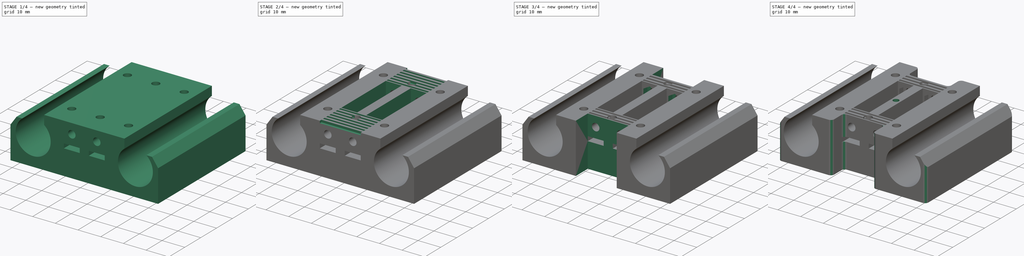
[diagram: build sequence overview — one tinted view per stage of 4, left to right]
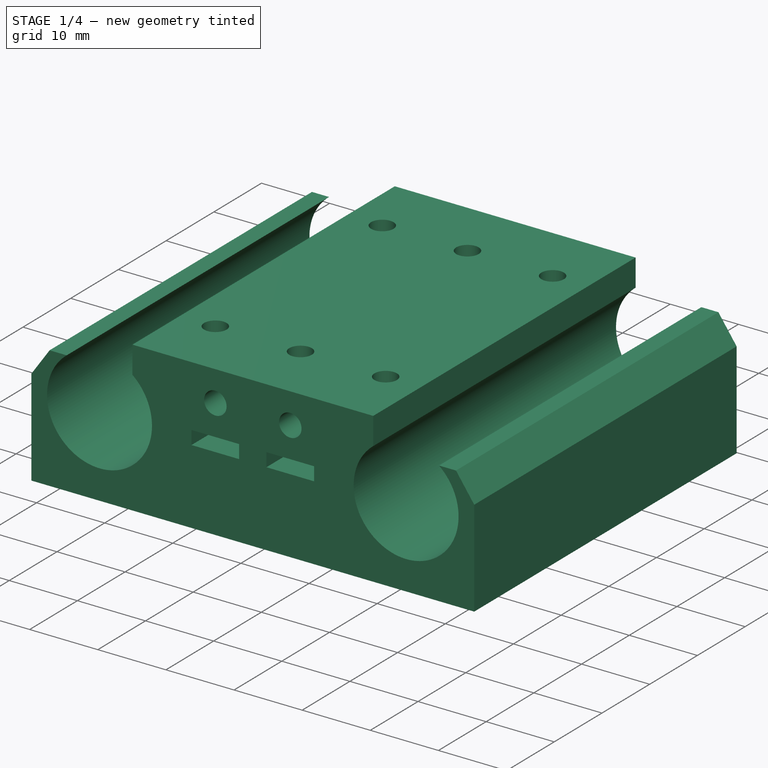
[diagram: stage 1 of 4 — iso view after this stage's code; geometry added in this stage tinted green]
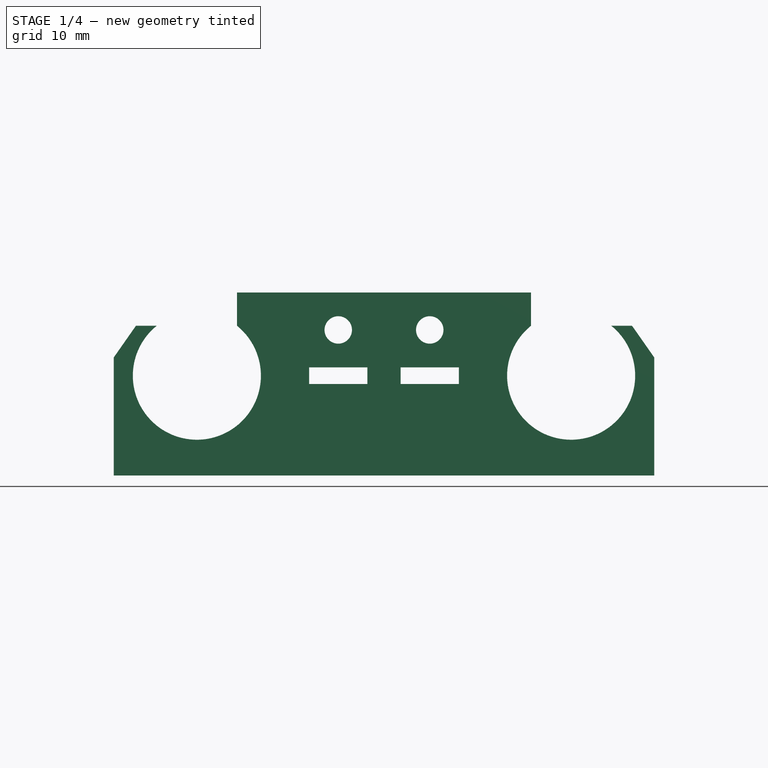
[diagram: stage 1 of 4 — front view after this stage's code; geometry added in this stage tinted green]
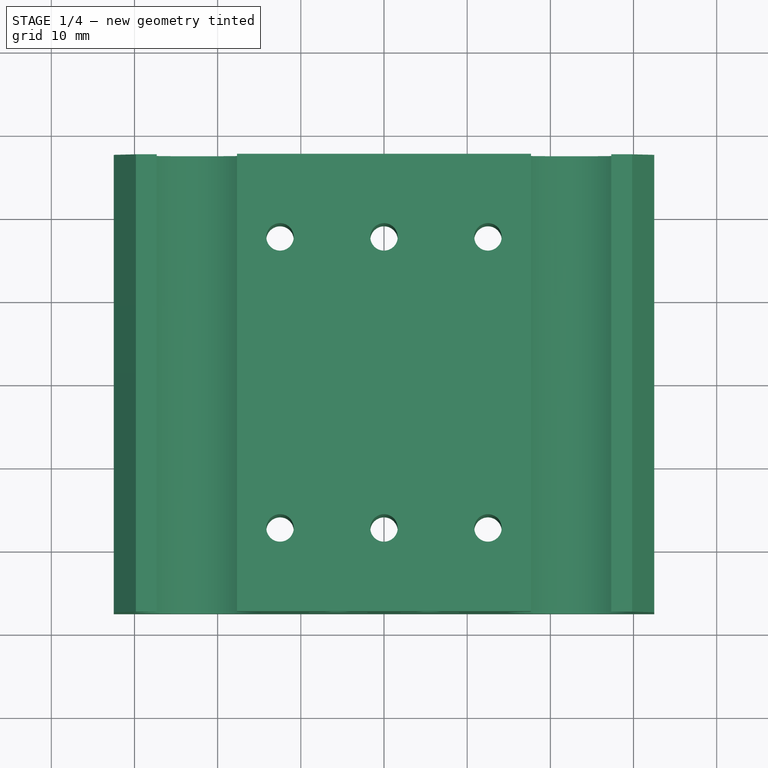
[diagram: stage 1 of 4 — top view after this stage's code; geometry added in this stage tinted green]
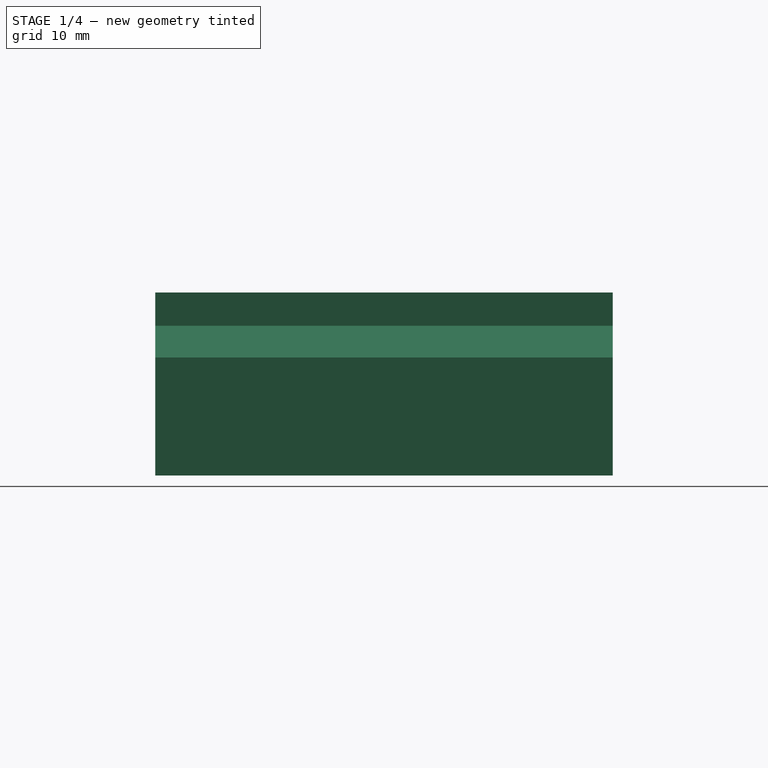
[diagram: stage 1 of 4 — right view after this stage's code; geometry added in this stage tinted green]
FCSTD DOCUMENT  (FreeCAD 0.19R20209 (Git))
Label: X-Axel-Bearing_1000
License: Creative Commons Attribution
LicenseURL: http://creativecommons.org/licenses/by/4.0/
objects: Sketcher::SketchObject×9, PartDesign::Pocket×8, PartDesign::Plane×4, PartDesign::Pad×1, PartDesign::Fillet×1, PartDesign::Body×1
note: 34 computed .brp shape members not serialized (recipe doc carries the construction recipe); baked Part::Feature solids carry a one-line shape summary decoded from their .brp

FEATURE [Sketcher::SketchObject] Sketch
  MapMode = 5
  Placement = pos=(0,0,0) rot=(1,0,0;1.5708rad)
  Support = -> [XZ_Plane]
  expr: Constraints[61] = 7 + 4
  sketch-geometry (22):
    g0: ArcOfCircle CenterX=-22.5 CenterY=0 CenterZ=0 NormalX=0 NormalY=0 NormalZ=1 AngleXU=0 Radius=7.7 StartAngle=2.24817 EndAngle=7.17661
    g1: ArcOfCircle CenterX=22.5 CenterY=0 CenterZ=0 NormalX=0 NormalY=0 NormalZ=1 AngleXU=0 Radius=7.7 StartAngle=2.24817 EndAngle=7.17661
    g2: LineSegment StartX=-27.326 StartY=6 StartZ=0 EndX=-29.826 EndY=6 EndZ=0
    g3: LineSegment StartX=-29.826 StartY=6 StartZ=0 EndX=-32.5 EndY=2.18109 EndZ=0
    g4: LineSegment StartX=-32.5 StartY=2.18109 StartZ=0 EndX=-32.5 EndY=-12 EndZ=0
    g5: LineSegment StartX=-32.5 StartY=-12 StartZ=0 EndX=32.5 EndY=-12 EndZ=0
    g6: LineSegment StartX=32.5 StartY=-12 StartZ=0 EndX=32.5 EndY=2.18109 EndZ=0
    g7: LineSegment StartX=32.5 StartY=2.18109 StartZ=0 EndX=29.826 EndY=6 EndZ=0
    g8: LineSegment StartX=29.826 StartY=6 StartZ=0 EndX=27.326 EndY=6 EndZ=0
    g9: LineSegment StartX=-9 StartY=1 StartZ=0 EndX=-2 EndY=1 EndZ=0
    g10: LineSegment StartX=-2 StartY=1 StartZ=0 EndX=-2 EndY=-1 EndZ=0
    g11: LineSegment StartX=-2 StartY=-1 StartZ=0 EndX=-9 EndY=-1 EndZ=0
    g12: LineSegment StartX=-9 StartY=-1 StartZ=0 EndX=-9 EndY=1 EndZ=0
    g13: LineSegment StartX=2 StartY=1 StartZ=0 EndX=9 EndY=1 EndZ=0
    g14: LineSegment StartX=9 StartY=1 StartZ=0 EndX=9 EndY=-1 EndZ=0
    g15: LineSegment StartX=9 StartY=-1 StartZ=0 EndX=2 EndY=-1 EndZ=0
    g16: LineSegment StartX=2 StartY=-1 StartZ=0 EndX=2 EndY=1 EndZ=0
    g17: LineSegment StartX=-17.674 StartY=6 StartZ=0 EndX=-17.674 EndY=10 EndZ=0
    g18: LineSegment StartX=-17.674 StartY=10 StartZ=0 EndX=17.674 EndY=10 EndZ=0
    g19: LineSegment StartX=17.674 StartY=10 StartZ=0 EndX=17.674 EndY=6 EndZ=0
    g20: Circle CenterX=-5.5 CenterY=5.5 CenterZ=0 NormalX=0 NormalY=0 NormalZ=1 AngleXU=0 Radius=1.65
    g21: Circle CenterX=5.5 CenterY=5.5 CenterZ=0 NormalX=0 NormalY=0 NormalZ=1 AngleXU=0 Radius=1.65
  constraints (64):
    c: Equal(g1,g0)
    c: Diameter(g0) = 15.4
    c: Horizontal(g0,g1)
    c: DistanceX(g0,g1) = 45
    c: Symmetric(g0,g1,g-1)
    c: Coincident(g2,g3)
    c: Coincident(g3,g4)
    c: Vertical(g4)
    c: Coincident(g4,g5)
    c: Coincident(g5,g6)
    c: Coincident(g6,g7)
    c: Coincident(g7,g8)
    c: Horizontal(g8)
    c: Vertical(g6)
    c: Horizontal(g2)
    c: Symmetric(g4,g5,g-2)
    c: DistanceX(g4,g5) = 65
    c: Angle(g4,g3) = 2.53073
    c: Angle(g7,g6) = 2.53073
    c: Horizontal(g8,g2)
    c: DistanceY(g5,g-1) = 12
    c: DistanceY(g4,g2) = 18
    c: Horizontal(g1,g8)
    c: Coincident(g0,g2)
    c: Coincident(g1,g8)
    c: Horizontal(g3,g6)
    c: DistanceX(g2,g0) = 2.5
    c: Coincident(g9,g10)
    c: Coincident(g10,g11)
    c: Coincident(g11,g12)
    c: Coincident(g12,g9)
    c: Horizontal(g9)
    c: Horizontal(g11)
    c: Vertical(g10)
    c: Vertical(g12)
    c: Coincident(g13,g14)
    c: Coincident(g14,g15)
    c: Coincident(g15,g16)
    c: Coincident(g16,g13)
    c: Horizontal(g13)
    c: Horizontal(g15)
    c: Vertical(g14)
    c: Vertical(g16)
    c: Equal(g13,g9)
    c: Equal(g12,g16)
    c: Symmetric(g9,g15,g-1)
    c: DistanceX(g10,g15) = 4
    c: DistanceX(g9,g9) = 7
    c: DistanceY(g12,g12) = 2
    c: Horizontal(g13,g9)
    c: Vertical(g17)
    c: Coincident(g17,g18)
    c: Horizontal(g18)
    c: Coincident(g18,g19)
    c: Vertical(g19)
    c: Coincident(g19,g1)
    c: Coincident(g17,g0)
    c: Horizontal(g0,g1)
    c: DistanceY(g5,g18) = 22
    c: Equal(g21,g20)
    c: Symmetric(g20,g21,g-2)
    c: DistanceX(g20,g21) = 11
    c: DistanceY(g-1,g21) = 5.5
    c: Diameter(g21) = 3.3
FEATURE [PartDesign::Pad] Pad
  Length = 55
  Length2 = 100
  Midplane = true
  Placement = pos=(0,0,0) rot=(1,0,0;1.5708rad)
  Profile = -> Sketch
  Refine = true
  Type = 0
FEATURE [Sketcher::SketchObject] Sketch001
  MapMode = 5
  Support = -> [XY_Plane]
  sketch-geometry (10):
    g0: LineSegment [constr] StartX=-12.5 StartY=17.5 StartZ=0 EndX=12.5 EndY=17.5 EndZ=0
    g1: LineSegment [constr] StartX=12.5 StartY=17.5 StartZ=0 EndX=12.5 EndY=-17.5 EndZ=0
    g2: LineSegment [constr] StartX=12.5 StartY=-17.5 StartZ=0 EndX=-12.5 EndY=-17.5 EndZ=0
    g3: LineSegment [constr] StartX=-12.5 StartY=-17.5 StartZ=0 EndX=-12.5 EndY=17.5 EndZ=0
    g4: Circle CenterX=-12.5 CenterY=17.5 CenterZ=0 NormalX=0 NormalY=0 NormalZ=1 AngleXU=0 Radius=1.65
    g5: Circle CenterX=12.5 CenterY=17.5 CenterZ=0 NormalX=0 NormalY=0 NormalZ=1 AngleXU=0 Radius=1.65
    g6: Circle CenterX=-12.5 CenterY=-17.5 CenterZ=0 NormalX=0 NormalY=0 NormalZ=1 AngleXU=0 Radius=1.65
    g7: Circle CenterX=12.5 CenterY=-17.5 CenterZ=0 NormalX=0 NormalY=0 NormalZ=1 AngleXU=0 Radius=1.65
    g8: Circle CenterX=1e-15 CenterY=17.5 CenterZ=0 NormalX=0 NormalY=0 NormalZ=1 AngleXU=0 Radius=1.65
    g9: Circle CenterX=2e-16 CenterY=-17.5 CenterZ=0 NormalX=0 NormalY=0 NormalZ=1 AngleXU=0 Radius=1.65
  constraints (23):
    c: Coincident(g0,g1)
    c: Coincident(g1,g2)
    c: Coincident(g2,g3)
    c: Coincident(g3,g0)
    c: Horizontal(g0)
    c: Horizontal(g2)
    c: Vertical(g1)
    c: Vertical(g3)
    c: DistanceX(g0,g0) = 25
    c: DistanceY(g1,g1) = 35
    c: Equal(g7,g5)
    c: Equal(g5,g4)
    c: Equal(g4,g6)
    c: Diameter(g4) = 3.3
    c: Coincident(g4,g0)
    c: Coincident(g5,g0)
    c: Coincident(g6,g2)
    c: Coincident(g7,g1)
    c: Equal(g9,g8)
    c: Equal(g8,g4)
    c: Symmetric(g4,g5,g8)
    c: Symmetric(g6,g7,g9)
    c: Symmetric(g4,g7,g-1)
FEATURE [PartDesign::Pocket] Pocket
  BaseFeature = -> Pad
  Length = 5
  Length2 = 100
  Midplane = true
  Placement = pos=(0,0,0) rot=(1,0,0;1.5708rad)
  Profile = -> Sketch001
  Refine = true
  Type = 1
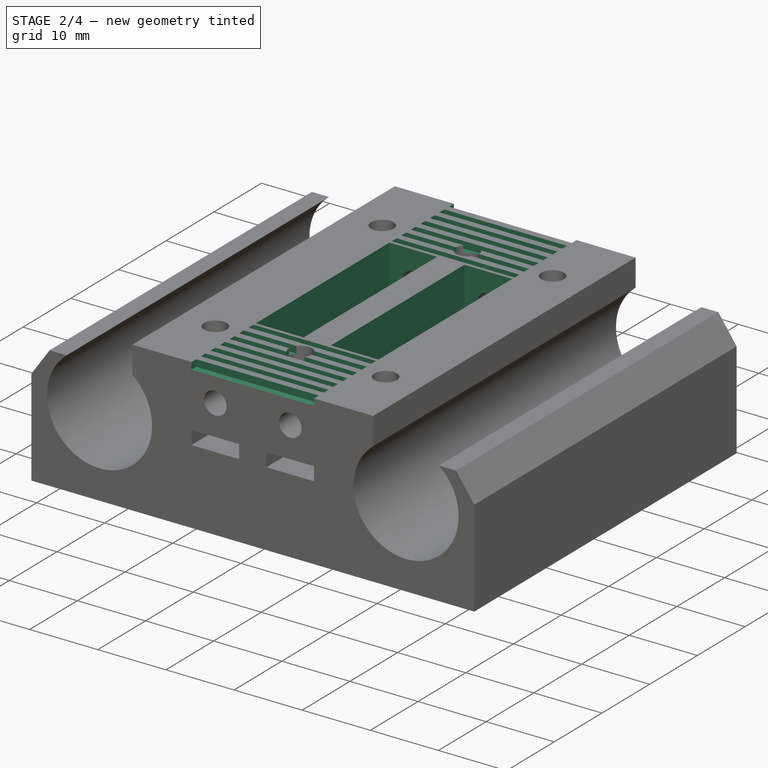
[diagram: stage 2 of 4 — iso view after this stage's code; geometry added in this stage tinted green]
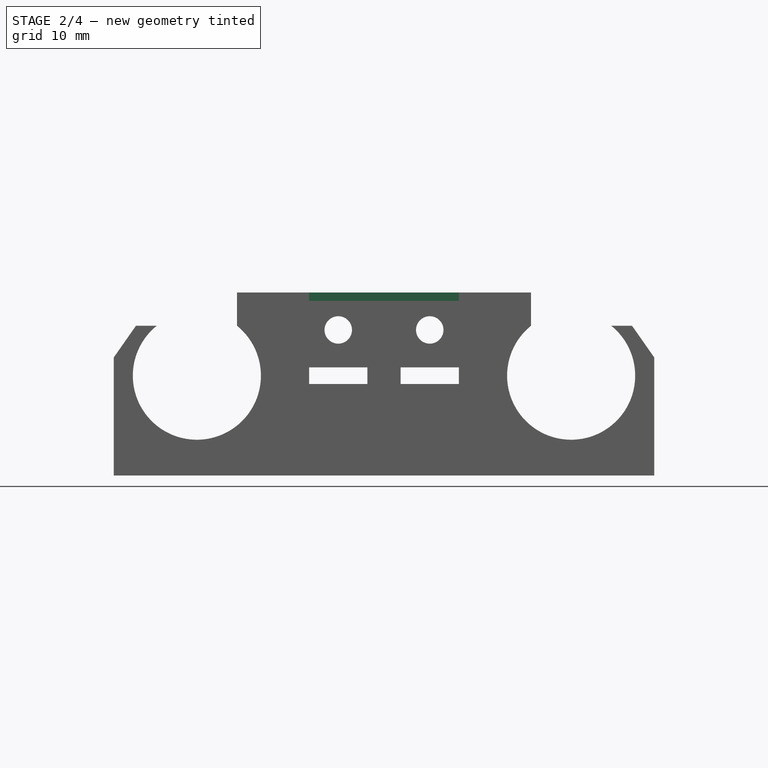
[diagram: stage 2 of 4 — front view after this stage's code; geometry added in this stage tinted green]
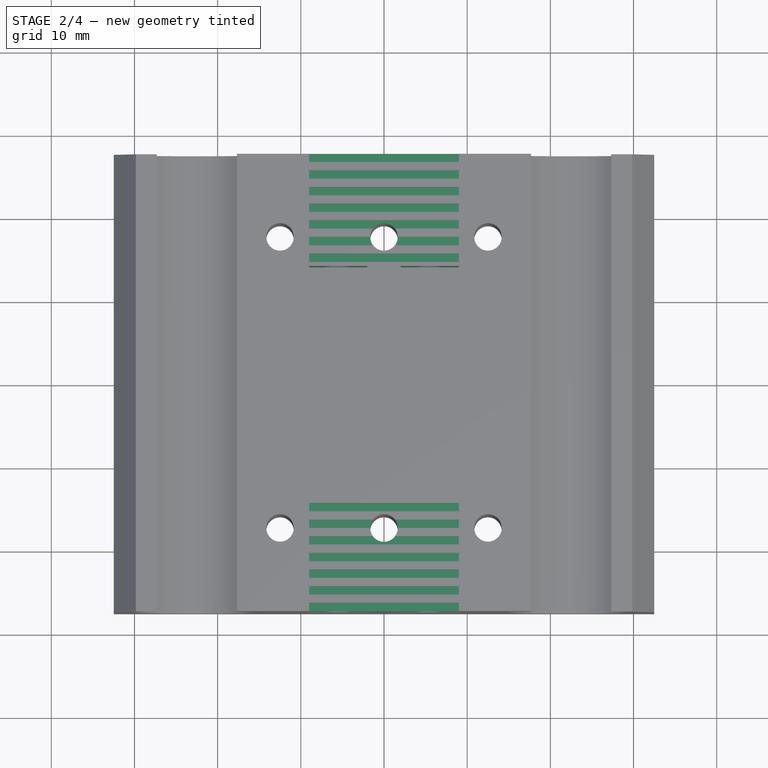
[diagram: stage 2 of 4 — top view after this stage's code; geometry added in this stage tinted green]
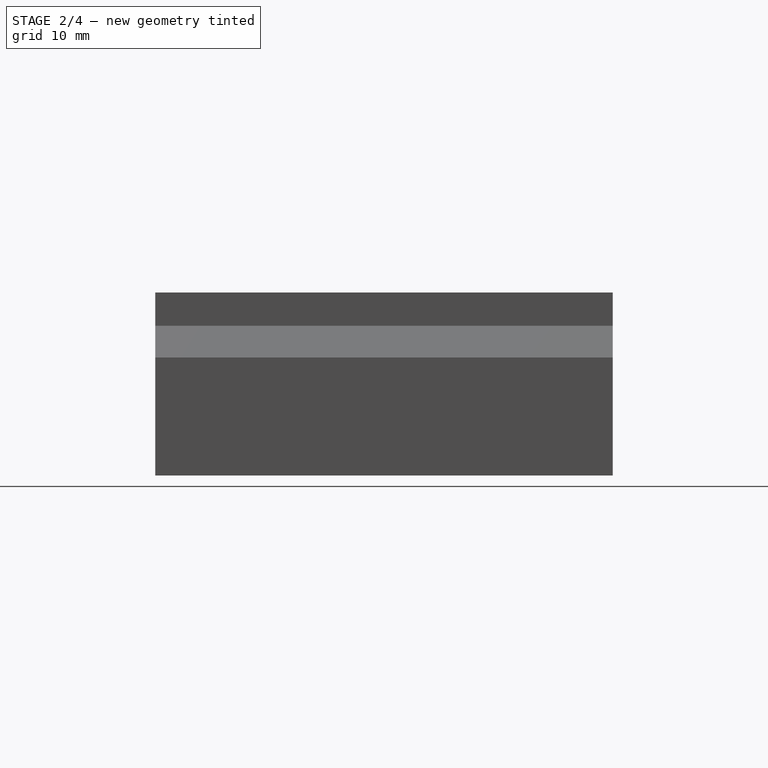
[diagram: stage 2 of 4 — right view after this stage's code; geometry added in this stage tinted green]
FEATURE [PartDesign::Plane] DatumPlane
  AttachmentOffset = pos=(0,0,-11) rot=(0,0,1;0rad)
  Length = 76.9583
  MapMode = 5
  Placement = pos=(0,0,-11) rot=(0,0,1;0rad)
  ResizeMode = 0
  Support = -> [XY_Plane]
  Width = 66.9583
FEATURE [Sketcher::SketchObject] Sketch002
  MapMode = 5
  Placement = pos=(0,0,-11) rot=(0,0,1;0rad)
  Support = -> [DatumPlane]
  sketch-geometry (8):
    g0: Circle CenterX=-8 CenterY=8 CenterZ=0 NormalX=0 NormalY=0 NormalZ=1 AngleXU=0 Radius=6.3
    g1: Circle CenterX=8 CenterY=8 CenterZ=0 NormalX=0 NormalY=0 NormalZ=1 AngleXU=0 Radius=6.3
    g2: Circle CenterX=8 CenterY=-8 CenterZ=0 NormalX=0 NormalY=0 NormalZ=1 AngleXU=0 Radius=6.3
    g3: Circle CenterX=-8 CenterY=-8 CenterZ=0 NormalX=0 NormalY=0 NormalZ=1 AngleXU=0 Radius=6.3
    g4: LineSegment [constr] StartX=-8 StartY=8 StartZ=0 EndX=8 EndY=8 EndZ=0
    g5: LineSegment [constr] StartX=8 StartY=8 StartZ=0 EndX=8 EndY=-8 EndZ=0
    g6: LineSegment [constr] StartX=8 StartY=-8 StartZ=0 EndX=-8 EndY=-8 EndZ=0
    g7: LineSegment [constr] StartX=-8 StartY=-8 StartZ=0 EndX=-8 EndY=8 EndZ=0
  constraints (18):
    c: Equal(g0,g3)
    c: Equal(g3,g2)
    c: Equal(g2,g1)
    c: Diameter(g0) = 12.6
    c: Coincident(g4,g5)
    c: Coincident(g5,g6)
    c: Coincident(g6,g7)
    c: Coincident(g7,g4)
    c: Horizontal(g6)
    c: Vertical(g5)
    c: Coincident(g0,g4)
    c: Coincident(g3,g6)
    c: Coincident(g5,g2)
    c: Coincident(g1,g4)
    c: Symmetric(g3,g0,g-1)
    c: Symmetric(g1,g0,g-2)
    c: DistanceX(g4,g4) = 16
    c: Equal(g7,g4)
FEATURE [PartDesign::Pocket] Pocket001
  BaseFeature = -> Pocket
  Length = 6.5
  Length2 = 100
  Placement = pos=(0,0,0) rot=(1,0,0;1.5708rad)
  Profile = -> Sketch002
  Refine = true
  Reversed = true
  Type = 0
FEATURE [PartDesign::Plane] DatumPlane001
  AttachmentOffset = pos=(0,0,10) rot=(0,0,1;0rad)
  Length = 76.9583
  MapMode = 5
  Placement = pos=(0,0,10) rot=(0,0,1;0rad)
  ResizeMode = 0
  Support = -> [XY_Plane]
  Width = 66.9583
FEATURE [Sketcher::SketchObject] Sketch003
  ExternalGeometry = -> [Pocket001]
  MapMode = 5
  Placement = pos=(0,0,10) rot=(0,0,1;0rad)
  Support = -> [DatumPlane001]
  sketch-geometry (8):
    g0: LineSegment StartX=-9 StartY=14 StartZ=0 EndX=-2 EndY=14 EndZ=0
    g1: LineSegment StartX=-2 StartY=14 StartZ=0 EndX=-2 EndY=-14 EndZ=0
    g2: LineSegment StartX=-2 StartY=-14 StartZ=0 EndX=-9 EndY=-14 EndZ=0
    g3: LineSegment StartX=-9 StartY=-14 StartZ=0 EndX=-9 EndY=14 EndZ=0
    g4: LineSegment StartX=2 StartY=14 StartZ=0 EndX=9 EndY=14 EndZ=0
    g5: LineSegment StartX=9 StartY=14 StartZ=0 EndX=9 EndY=-14 EndZ=0
    g6: LineSegment StartX=9 StartY=-14 StartZ=0 EndX=2 EndY=-14 EndZ=0
    g7: LineSegment StartX=2 StartY=-14 StartZ=0 EndX=2 EndY=14 EndZ=0
  constraints (22):
    c: Coincident(g0,g1)
    c: Coincident(g1,g2)
    c: Coincident(g2,g3)
    c: Coincident(g3,g0)
    c: Horizontal(g0)
    c: Horizontal(g2)
    c: Vertical(g3)
    c: Coincident(g4,g5)
    c: Coincident(g5,g6)
    c: Coincident(g6,g7)
    c: Coincident(g7,g4)
    c: Horizontal(g4)
    c: Horizontal(g6)
    c: Vertical(g5)
    c: Equal(g0,g4)
    c: Equal(g1,g7)
    c: Symmetric(g4,g6,g-1)
    c: Symmetric(g0,g1,g-1)
    c: DistanceX(g0,g4) = 4
    c: DistanceX(g0,g0) = 7
    c: DistanceY(g3,g3) = 28
    c: Vertical(g-3,g4)
FEATURE [PartDesign::Pocket] Pocket002
  BaseFeature = -> Pocket001
  Length = 10
  Length2 = 100
  Placement = pos=(0,0,0) rot=(1,0,0;1.5708rad)
  Profile = -> Sketch003
  Refine = true
  Type = 0
FEATURE [Sketcher::SketchObject] Sketch004
  ExternalGeometry = -> [Pocket002]
  MapMode = 5
  Placement = pos=(0,0,10) rot=(0,0,1;0rad)
  Support = -> [DatumPlane001]
  sketch-geometry (56):
    g0: LineSegment StartX=-9 StartY=15.5 StartZ=0 EndX=9 EndY=15.5 EndZ=0
    g1: LineSegment StartX=9 StartY=15.5 StartZ=0 EndX=9 EndY=14.5 EndZ=0
    g2: LineSegment StartX=9 StartY=14.5 StartZ=0 EndX=-9 EndY=14.5 EndZ=0
    g3: LineSegment StartX=-9 StartY=14.5 StartZ=0 EndX=-9 EndY=15.5 EndZ=0
    g4: LineSegment StartX=-9 StartY=17.5 StartZ=0 EndX=9 EndY=17.5 EndZ=0
    g5: LineSegment StartX=9 StartY=17.5 StartZ=0 EndX=9 EndY=16.5 EndZ=0
    g6: LineSegment StartX=9 StartY=16.5 StartZ=0 EndX=-9 EndY=16.5 EndZ=0
    g7: LineSegment StartX=-9 StartY=16.5 StartZ=0 EndX=-9 EndY=17.5 EndZ=0
    g8: LineSegment StartX=-9 StartY=19.5 StartZ=0 EndX=9 EndY=19.5 EndZ=0
    g9: LineSegment StartX=9 StartY=19.5 StartZ=0 EndX=9 EndY=18.5 EndZ=0
    g10: LineSegment StartX=9 StartY=18.5 StartZ=0 EndX=-9 EndY=18.5 EndZ=0
    g11: LineSegment StartX=-9 StartY=18.5 StartZ=0 EndX=-9 EndY=19.5 EndZ=0
    g12: LineSegment StartX=-9 StartY=21.5 StartZ=0 EndX=9 EndY=21.5 EndZ=0
    g13: LineSegment StartX=9 StartY=21.5 StartZ=0 EndX=9 EndY=20.5 EndZ=0
    g14: LineSegment StartX=9 StartY=20.5 StartZ=0 EndX=-9 EndY=20.5 EndZ=0
    g15: LineSegment StartX=-9 StartY=20.5 StartZ=0 EndX=-9 EndY=21.5 EndZ=0
    g16: LineSegment StartX=-9 StartY=23.5 StartZ=0 EndX=9 EndY=23.5 EndZ=0
    g17: LineSegment StartX=9 StartY=23.5 StartZ=0 EndX=9 EndY=22.5 EndZ=0
    g18: LineSegment StartX=9 StartY=22.5 StartZ=0 EndX=-9 EndY=22.5 EndZ=0
    g19: LineSegment StartX=-9 StartY=22.5 StartZ=0 EndX=-9 EndY=23.5 EndZ=0
    g20: LineSegment StartX=-9 StartY=25.5 StartZ=0 EndX=9 EndY=25.5 EndZ=0
    g21: LineSegment StartX=9 StartY=25.5 StartZ=0 EndX=9 EndY=24.5 EndZ=0
    g22: LineSegment StartX=9 StartY=24.5 StartZ=0 EndX=-9 EndY=24.5 EndZ=0
    g23: LineSegment StartX=-9 StartY=24.5 StartZ=0 EndX=-9 EndY=25.5 EndZ=0
    g24: LineSegment StartX=-9 StartY=27.5 StartZ=0 EndX=9 EndY=27.5 EndZ=0
    g25: LineSegment StartX=9 StartY=27.5 StartZ=0 EndX=9 EndY=26.5 EndZ=0
    g26: LineSegment StartX=9 StartY=26.5 StartZ=0 EndX=-9 EndY=26.5 EndZ=0
    g27: LineSegment StartX=-9 StartY=26.5 StartZ=0 EndX=-9 EndY=27.5 EndZ=0
    g28: LineSegment StartX=-9 StartY=-26.5 StartZ=0 EndX=9 EndY=-26.5 EndZ=0
    g29: LineSegment StartX=9 StartY=-26.5 StartZ=0 EndX=9 EndY=-27.5 EndZ=0
    g30: LineSegment StartX=9 StartY=-27.5 StartZ=0 EndX=-9 EndY=-27.5 EndZ=0
    g31: LineSegment StartX=-9 StartY=-27.5 StartZ=0 EndX=-9 EndY=-26.5 EndZ=0
    g32: LineSegment StartX=-9 StartY=-24.5 StartZ=0 EndX=9 EndY=-24.5 EndZ=0
    g33: LineSegment StartX=9 StartY=-24.5 StartZ=0 EndX=9 EndY=-25.5 EndZ=0
    g34: LineSegment StartX=9 StartY=-25.5 StartZ=0 EndX=-9 EndY=-25.5 EndZ=0
    g35: LineSegment StartX=-9 StartY=-25.5 StartZ=0 EndX=-9 EndY=-24.5 EndZ=0
    g36: LineSegment StartX=-9 StartY=-22.5 StartZ=0 EndX=9 EndY=-22.5 EndZ=0
    g37: LineSegment StartX=9 StartY=-22.5 StartZ=0 EndX=9 EndY=-23.5 EndZ=0
    g38: LineSegment StartX=9 StartY=-23.5 StartZ=0 EndX=-9 EndY=-23.5 EndZ=0
    g39: LineSegment StartX=-9 StartY=-23.5 StartZ=0 EndX=-9 EndY=-22.5 EndZ=0
    g40: LineSegment StartX=-9 StartY=-20.5 StartZ=0 EndX=9 EndY=-20.5 EndZ=0
    g41: LineSegment StartX=9 StartY=-20.5 StartZ=0 EndX=9 EndY=-21.5 EndZ=0
    g42: LineSegment StartX=9 StartY=-21.5 StartZ=0 EndX=-9 EndY=-21.5 EndZ=0
    g43: LineSegment StartX=-9 StartY=-21.5 StartZ=0 EndX=-9 EndY=-20.5 EndZ=0
    g44: LineSegment StartX=-9 StartY=-18.5 StartZ=0 EndX=9 EndY=-18.5 EndZ=0
    g45: LineSegment StartX=9 StartY=-18.5 StartZ=0 EndX=9 EndY=-19.5 EndZ=0
    g46: LineSegment StartX=9 StartY=-19.5 StartZ=0 EndX=-9 EndY=-19.5 EndZ=0
    g47: LineSegment StartX=-9 StartY=-19.5 StartZ=0 EndX=-9 EndY=-18.5 EndZ=0
    g48: LineSegment StartX=-9 StartY=-16.5 StartZ=0 EndX=9 EndY=-16.5 EndZ=0
    g49: LineSegment StartX=9 StartY=-16.5 StartZ=0 EndX=9 EndY=-17.5 EndZ=0
    g50: LineSegment StartX=9 StartY=-17.5 StartZ=0 EndX=-9 EndY=-17.5 EndZ=0
    g51: LineSegment StartX=-9 StartY=-17.5 StartZ=0 EndX=-9 EndY=-16.5 EndZ=0
    g52: LineSegment StartX=-9 StartY=-14.5 StartZ=0 EndX=9 EndY=-14.5 EndZ=0
    g53: LineSegment StartX=9 StartY=-14.5 StartZ=0 EndX=9 EndY=-15.5 EndZ=0
    g54: LineSegment StartX=9 StartY=-15.5 StartZ=0 EndX=-9 EndY=-15.5 EndZ=0
    g55: LineSegment StartX=-9 StartY=-15.5 StartZ=0 EndX=-9 EndY=-14.5 EndZ=0
  constraints (168):
    c: Coincident(g0,g1)
    c: Coincident(g1,g2)
    c: Coincident(g2,g3)
    c: Coincident(g3,g0)
    c: Horizontal(g0)
    c: Horizontal(g2)
    c: Vertical(g1)
    c: Vertical(g3)
    c: Coincident(g4,g5)
    c: Coincident(g5,g6)
    c: Coincident(g6,g7)
    c: Coincident(g7,g4)
    c: Horizontal(g4)
    c: Horizontal(g6)
    c: Vertical(g5)
    c: Vertical(g7)
    c: Coincident(g8,g9)
    c: Coincident(g9,g10)
    c: Coincident(g10,g11)
    c: Coincident(g11,g8)
    c: Horizontal(g8)
    c: Horizontal(g10)
    c: Vertical(g9)
    c: Vertical(g11)
    c: Coincident(g12,g13)
    c: Coincident(g13,g14)
    c: Coincident(g14,g15)
    c: Coincident(g15,g12)
    c: Horizontal(g12)
    c: Horizontal(g14)
    c: Vertical(g13)
    c: Vertical(g15)
    c: Equal(g14,g10)
    c: Equal(g10,g6)
    c: Equal(g6,g2)
    c: Vertical(g12,g8)
    c: Vertical(g8,g4)
    c: Vertical(g4,g0)
    c: DistanceY(g13,g13) = 1
    c: Equal(g15,g11)
    c: Equal(g7,g11)
    c: Equal(g11,g3)
    c: DistanceY(g8,g13) = 1
    c: DistanceY(g4,g9) = 1
    c: DistanceY(g0,g5) = 1
    c: DistanceX(g12,g12) = 18
    c: Vertical(g2,g-3)
    c: DistanceY(g-3,g2) = 0.5
    c: Coincident(g16,g17)
    c: Coincident(g17,g18)
    c: Coincident(g18,g19)
    c: Coincident(g19,g16)
    c: Horizontal(g16)
    c: Horizontal(g18)
    c: Vertical(g17)
    c: Vertical(g19)
    c: Coincident(g20,g21)
    c: Coincident(g21,g22)
    c: Coincident(g22,g23)
    c: Coincident(g23,g20)
    c: Horizontal(g20)
    c: Horizontal(g22)
    c: Vertical(g21)
    c: Vertical(g23)
    c: Coincident(g24,g25)
    c: Coincident(g25,g26)
    c: Coincident(g26,g27)
    c: Coincident(g27,g24)
    c: Horizontal(g24)
    c: Horizontal(g26)
    c: Vertical(g25)
    c: Vertical(g27)
    c: Equal(g12,g16)
    c: Equal(g16,g20)
    c: Equal(g20,g24)
    c: Equal(g19,g23)
    c: Equal(g23,g27)
    c: Equal(g27,g15)
    c: Vertical(g18,g24)
    c: Vertical(g24,g20)
    c: Vertical(g20,g12)
    c: DistanceY(g12,g17) = 1
    c: DistanceY(g16,g21) = 1
    c: DistanceY(g20,g25) = 1
    c: Coincident(g28,g29)
    c: Coincident(g29,g30)
    c: Coincident(g30,g31)
    c: Coincident(g31,g28)
    c: Horizontal(g28)
    c: Horizontal(g30)
    c: Vertical(g29)
    c: Vertical(g31)
    c: Coincident(g32,g33)
    c: Coincident(g33,g34)
    c: Coincident(g34,g35)
    c: Coincident(g35,g32)
    c: Horizontal(g32)
    c: Horizontal(g34)
    c: Vertical(g33)
    c: Vertical(g35)
    c: Coincident(g36,g37)
    c: Coincident(g37,g38)
    c: Coincident(g38,g39)
    c: Coincident(g39,g36)
    c: Horizontal(g36)
    c: Horizontal(g38)
    c: Vertical(g37)
    c: Vertical(g39)
    c: Coincident(g40,g41)
    c: Coincident(g41,g42)
    c: Coincident(g42,g43)
    c: Coincident(g43,g40)
    c: Horizontal(g40)
    c: Horizontal(g42)
    c: Vertical(g41)
    c: Vertical(g43)
    c: Equal(g42,g38)
    c: Equal(g38,g34)
    c: Equal(g34,g30)
    c: Vertical(g40,g36)
    c: Vertical(g36,g32)
    c: Vertical(g32,g28)
    c: Equal(g13,g41) = 1
    c: Equal(g43,g39)
    c: Equal(g35,g39)
    c: Equal(g39,g31)
    c: DistanceY(g36,g41) = 1
    c: DistanceY(g32,g37) = 1
    c: DistanceY(g28,g33) = 1
    c: Equal(g12,g40) = 18
    c: Coincident(g44,g45)
    c: Coincident(g45,g46)
    c: Coincident(g46,g47)
    c: Coincident(g47,g44)
    c: Horizontal(g44)
    c: Horizontal(g46)
    c: Vertical(g45)
    c: Vertical(g47)
    c: Coincident(g48,g49)
    c: Coincident(g49,g50)
    c: Coincident(g50,g51)
    c: Coincident(g51,g48)
    c: Horizontal(g48)
    c: Horizontal(g50)
    c: Vertical(g49)
    c: Vertical(g51)
    c: Coincident(g52,g53)
    c: Coincident(g53,g54)
    c: Coincident(g54,g55)
    c: Coincident(g55,g52)
    c: Horizontal(g52)
    c: Horizontal(g54)
    c: Vertical(g53)
    c: Vertical(g55)
    c: Equal(g40,g44)
    c: Equal(g44,g48)
    c: Equal(g48,g52)
    c: Equal(g47,g51)
    c: Equal(g51,g55)
    c: Equal(g55,g43)
    c: Vertical(g46,g52)
    c: Vertical(g52,g48)
    c: Vertical(g48,g40)
    c: DistanceY(g40,g45) = 1
    c: DistanceY(g44,g49) = 1
    c: DistanceY(g48,g53) = 1
    c: Vertical(g1,g52)
    c: DistanceY(g52,g-4) = 0.5
FEATURE [PartDesign::Pocket] Pocket003
  BaseFeature = -> Pocket002
  Length = 1
  Length2 = 100
  Placement = pos=(0,0,0) rot=(1,0,0;1.5708rad)
  Profile = -> Sketch004
  Refine = true
  Type = 0
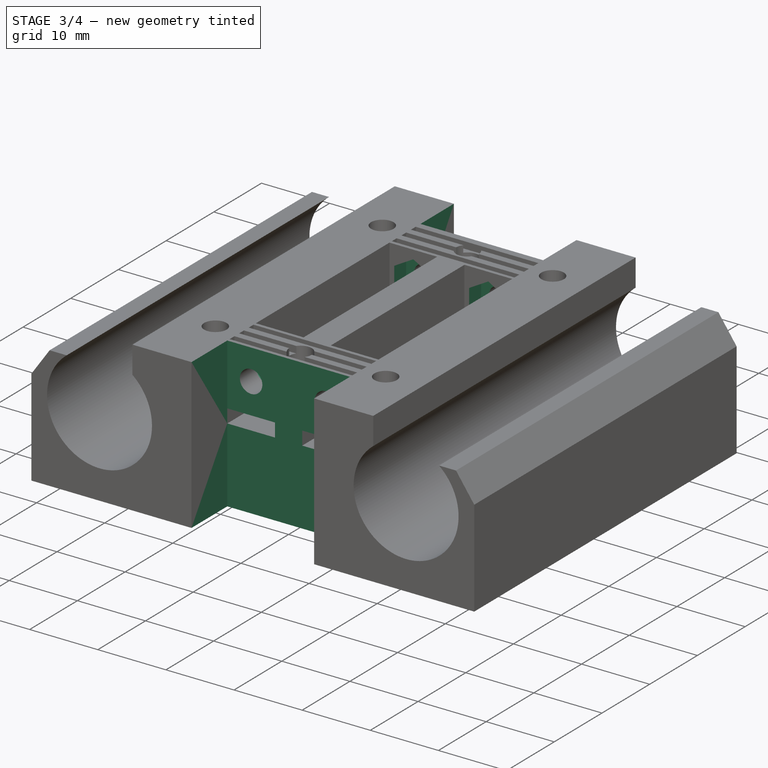
[diagram: stage 3 of 4 — iso view after this stage's code; geometry added in this stage tinted green]
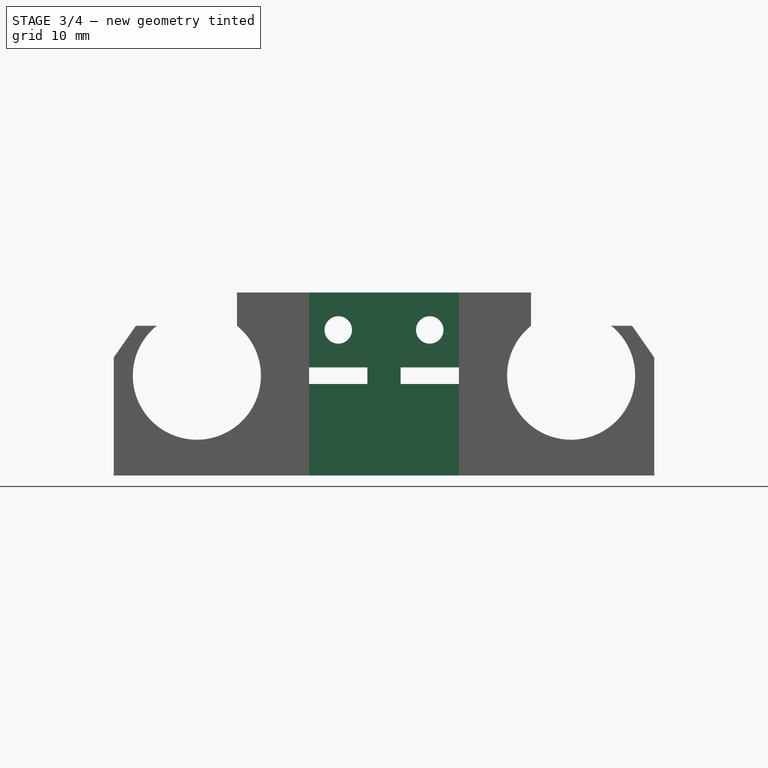
[diagram: stage 3 of 4 — front view after this stage's code; geometry added in this stage tinted green]
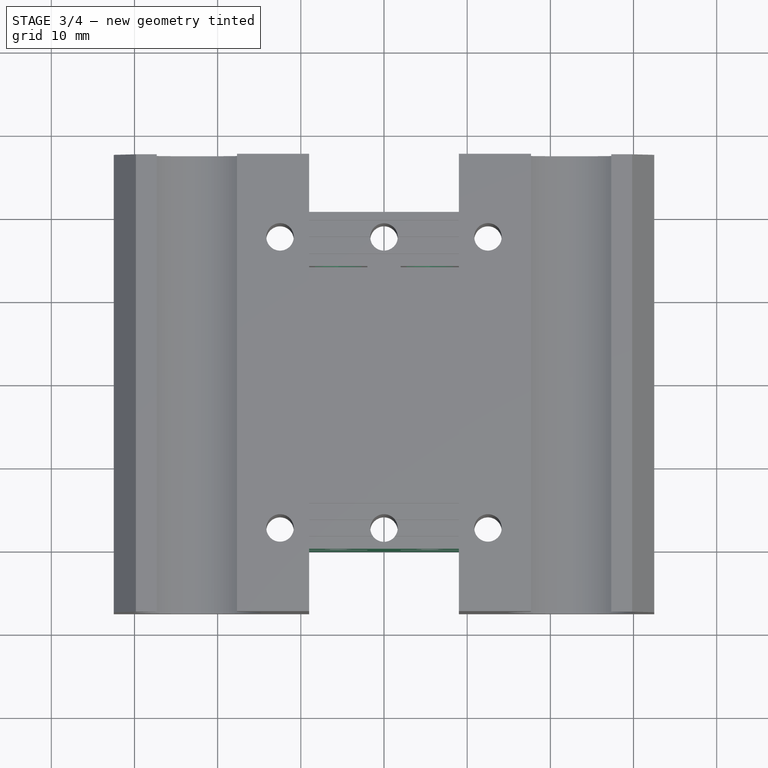
[diagram: stage 3 of 4 — top view after this stage's code; geometry added in this stage tinted green]
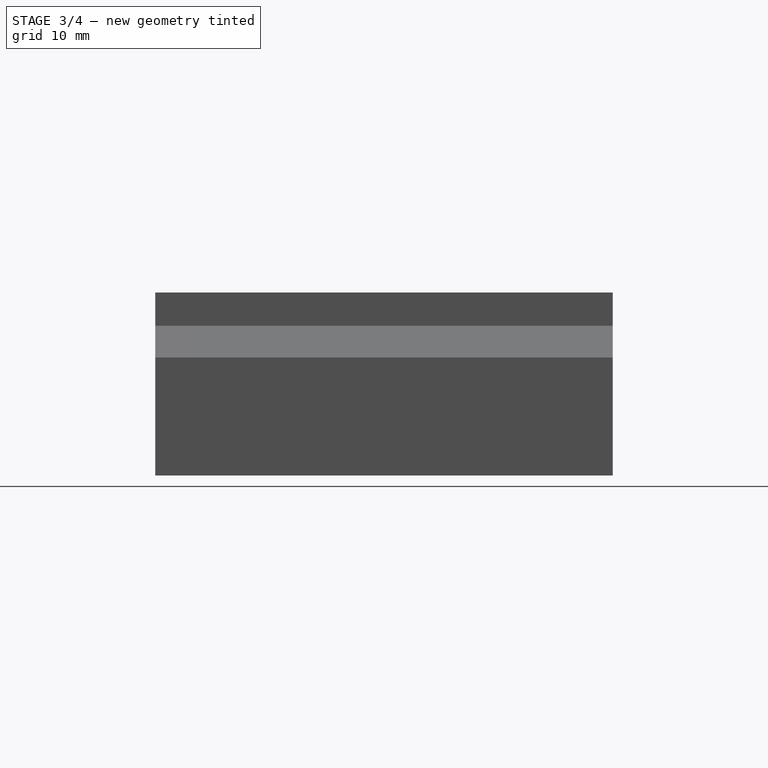
[diagram: stage 3 of 4 — right view after this stage's code; geometry added in this stage tinted green]
FEATURE [PartDesign::Plane] DatumPlane002
  AttachmentOffset = pos=(0,0,14) rot=(0,0,1;0rad)
  Length = 76.4018
  MapMode = 5
  Placement = pos=(0,-14,-3.1e-15) rot=(1,0,0;1.5708rad)
  ResizeMode = 0
  Support = -> [XZ_Plane]
  Width = 61.4018
FEATURE [Sketcher::SketchObject] Sketch005
  ExternalGeometry = -> [Pocket003]
  MapMode = 5
  Placement = pos=(0,-14,-3.1e-15) rot=(1,0,0;1.5708rad)
  Support = -> [DatumPlane002]
  sketch-geometry (14):
    g0: LineSegment StartX=-5.5 StartY=2.26684 StartZ=0 EndX=-2.7 EndY=3.88342 EndZ=0
    g1: LineSegment StartX=-2.7 StartY=3.88342 StartZ=0 EndX=-2.7 EndY=7.11658 EndZ=0
    g2: LineSegment StartX=-2.7 StartY=7.11658 StartZ=0 EndX=-5.5 EndY=8.73316 EndZ=0
    g3: LineSegment StartX=-5.5 StartY=8.73316 StartZ=0 EndX=-8.3 EndY=7.11658 EndZ=0
    g4: LineSegment StartX=-8.3 StartY=7.11658 StartZ=0 EndX=-8.3 EndY=3.88342 EndZ=0
    g5: LineSegment StartX=-8.3 StartY=3.88342 StartZ=0 EndX=-5.5 EndY=2.26684 EndZ=0
    g6: Circle [constr] CenterX=-5.5 CenterY=5.5 CenterZ=0 NormalX=0 NormalY=0 NormalZ=1 AngleXU=0 Radius=3.23316
    g7: LineSegment StartX=8.3 StartY=3.88342 StartZ=0 EndX=8.3 EndY=7.11658 EndZ=0
    g8: LineSegment StartX=8.3 StartY=7.11658 StartZ=0 EndX=5.5 EndY=8.73316 EndZ=0
    g9: LineSegment StartX=5.5 StartY=8.73316 StartZ=0 EndX=2.7 EndY=7.11658 EndZ=0
    g10: LineSegment StartX=2.7 StartY=7.11658 StartZ=0 EndX=2.7 EndY=3.88342 EndZ=0
    g11: LineSegment StartX=2.7 StartY=3.88342 StartZ=0 EndX=5.5 EndY=2.26684 EndZ=0
    g12: LineSegment StartX=5.5 StartY=2.26684 StartZ=0 EndX=8.3 EndY=3.88342 EndZ=0
    g13: Circle [constr] CenterX=5.5 CenterY=5.5 CenterZ=0 NormalX=0 NormalY=0 NormalZ=1 AngleXU=0 Radius=3.23316
  constraints (32):
    c: Coincident(g0,g1)
    c: Coincident(g1,g2)
    c: Coincident(g2,g3)
    c: Coincident(g3,g4)
    c: Coincident(g4,g5)
    c: Coincident(g5,g0)
    c: Equal(g0, g1-g5) x5
    c: PointOnObject(g0,g6)
    c: PointOnObject(g1,g6)
    c: PointOnObject(g2,g6)
    c: PointOnObject(g3,g6)
    c: PointOnObject(g4,g6)
    c: PointOnObject(g5,g6)
    c: Coincident(g6,g-3)
    c: Vertical(g2,g6)
    c: Distance(g3,g1) = 5.6
    c: Coincident(g7,g8)
    c: Coincident(g8,g9)
    c: Coincident(g9,g10)
    c: Coincident(g10,g11)
    c: Coincident(g11,g12)
    c: Coincident(g12,g7)
    c: Equal(g7, g8-g12) x5
    c: PointOnObject(g7,g13)
    c: PointOnObject(g8,g13)
    c: PointOnObject(g9,g13)
    c: PointOnObject(g10,g13)
    c: PointOnObject(g11,g13)
    c: PointOnObject(g12,g13)
    c: Coincident(g13,g-4)
    c: Equal(g13,g6)
    c: Vertical(g13,g8)
FEATURE [PartDesign::Pocket] Pocket004
  BaseFeature = -> Pocket003
  Length = 2.5
  Length2 = 100
  Placement = pos=(0,0,0) rot=(1,0,0;1.5708rad)
  Profile = -> Sketch005
  Refine = true
  Reversed = true
  Type = 0
FEATURE [PartDesign::Plane] DatumPlane003
  AttachmentOffset = pos=(0,0,-14) rot=(0,0,1;0rad)
  Length = 76.4018
  MapMode = 5
  Placement = pos=(0,14,3.1e-15) rot=(1,0,0;1.5708rad)
  ResizeMode = 0
  Support = -> [XZ_Plane]
  Width = 61.4018
FEATURE [Sketcher::SketchObject] Sketch006
  ExternalGeometry = -> [Pocket004]
  MapMode = 5
  Placement = pos=(0,14,3.1e-15) rot=(1,0,0;1.5708rad)
  Support = -> [DatumPlane003]
  sketch-geometry (14):
    g0: LineSegment StartX=-2.7 StartY=3.88342 StartZ=0 EndX=-2.7 EndY=7.11658 EndZ=0
    g1: LineSegment StartX=-2.7 StartY=7.11658 StartZ=0 EndX=-5.5 EndY=8.73316 EndZ=0
    g2: LineSegment StartX=-5.5 StartY=8.73316 StartZ=0 EndX=-8.3 EndY=7.11658 EndZ=0
    g3: LineSegment StartX=-8.3 StartY=7.11658 StartZ=0 EndX=-8.3 EndY=3.88342 EndZ=0
    g4: LineSegment StartX=-8.3 StartY=3.88342 StartZ=0 EndX=-5.5 EndY=2.26684 EndZ=0
    g5: LineSegment StartX=-5.5 StartY=2.26684 StartZ=0 EndX=-2.7 EndY=3.88342 EndZ=0
    g6: Circle [constr] CenterX=-5.5 CenterY=5.5 CenterZ=0 NormalX=0 NormalY=0 NormalZ=1 AngleXU=0 Radius=3.23316
    g7: LineSegment StartX=8.3 StartY=3.88342 StartZ=0 EndX=8.3 EndY=7.11658 EndZ=0
    g8: LineSegment StartX=8.3 StartY=7.11658 StartZ=0 EndX=5.5 EndY=8.73316 EndZ=0
    g9: LineSegment StartX=5.5 StartY=8.73316 StartZ=0 EndX=2.7 EndY=7.11658 EndZ=0
    g10: LineSegment StartX=2.7 StartY=7.11658 StartZ=0 EndX=2.7 EndY=3.88342 EndZ=0
    g11: LineSegment StartX=2.7 StartY=3.88342 StartZ=0 EndX=5.5 EndY=2.26684 EndZ=0
    g12: LineSegment StartX=5.5 StartY=2.26684 StartZ=0 EndX=8.3 EndY=3.88342 EndZ=0
    g13: Circle [constr] CenterX=5.5 CenterY=5.5 CenterZ=0 NormalX=0 NormalY=0 NormalZ=1 AngleXU=0 Radius=3.23316
  constraints (32):
    c: Coincident(g0,g1)
    c: Coincident(g1,g2)
    c: Coincident(g2,g3)
    c: Coincident(g3,g4)
    c: Coincident(g4,g5)
    c: Coincident(g5,g0)
    c: Equal(g0, g1-g5) x5
    c: PointOnObject(g0,g6)
    c: PointOnObject(g1,g6)
    c: PointOnObject(g2,g6)
    c: PointOnObject(g3,g6)
    c: PointOnObject(g4,g6)
    c: PointOnObject(g5,g6)
    c: Coincident(g7,g8)
    c: Coincident(g8,g9)
    c: Coincident(g9,g10)
    c: Coincident(g10,g11)
    c: Coincident(g11,g12)
    c: Coincident(g12,g7)
    c: Equal(g7, g8-g12) x5
    c: PointOnObject(g7,g13)
    c: PointOnObject(g8,g13)
    c: PointOnObject(g9,g13)
    c: PointOnObject(g10,g13)
    c: PointOnObject(g11,g13)
    c: PointOnObject(g12,g13)
    c: Coincident(g6,g-3)
    c: Coincident(g13,g-4)
    c: Vertical(g6,g1)
    c: Vertical(g13,g8)
    c: Equal(g13,g6)
    c: Distance(g2,g0) = 5.6
FEATURE [PartDesign::Pocket] Pocket005
  BaseFeature = -> Pocket004
  Length = 2.5
  Length2 = 100
  Placement = pos=(0,0,0) rot=(1,0,0;1.5708rad)
  Profile = -> Sketch006
  Refine = true
  Type = 0
FEATURE [Sketcher::SketchObject] Sketch007
  ExternalGeometry = -> [Pocket005]
  MapMode = 5
  Placement = pos=(0,0,10) rot=(0,0,1;0rad)
  Support = -> [DatumPlane001]
  sketch-geometry (8):
    g0: LineSegment StartX=-9 StartY=27.5 StartZ=0 EndX=9 EndY=27.5 EndZ=0
    g1: LineSegment StartX=9 StartY=27.5 StartZ=0 EndX=9 EndY=20.5 EndZ=0
    g2: LineSegment StartX=9 StartY=20.5 StartZ=0 EndX=-9 EndY=20.5 EndZ=0
    g3: LineSegment StartX=-9 StartY=20.5 StartZ=0 EndX=-9 EndY=27.5 EndZ=0
    g4: LineSegment StartX=-9 StartY=-20 StartZ=0 EndX=9 EndY=-20 EndZ=0
    g5: LineSegment StartX=9 StartY=-20 StartZ=0 EndX=9 EndY=-27.5 EndZ=0
    g6: LineSegment StartX=9 StartY=-27.5 StartZ=0 EndX=-9 EndY=-27.5 EndZ=0
    g7: LineSegment StartX=-9 StartY=-27.5 StartZ=0 EndX=-9 EndY=-20 EndZ=0
  constraints (21):
    c: Coincident(g0,g1)
    c: Coincident(g1,g2)
    c: Coincident(g2,g3)
    c: Coincident(g3,g0)
    c: Horizontal(g0)
    c: Horizontal(g2)
    c: Vertical(g1)
    c: Vertical(g3)
    c: Vertical(g2,g-4)
    c: DistanceY(g1,g-3) = 7
    c: Coincident(g0,g-3)
    c: Coincident(g4,g5)
    c: Coincident(g5,g6)
    c: Coincident(g6,g7)
    c: Coincident(g7,g4)
    c: Horizontal(g4)
    c: Vertical(g5)
    c: Vertical(g7)
    c: Coincident(g5,g-6)
    c: Coincident(g6,g-5)
    c: DistanceY(g6,g4) = 7.5
FEATURE [PartDesign::Pocket] Pocket006
  BaseFeature = -> Pocket005
  Length = 5
  Length2 = 100
  Placement = pos=(0,0,0) rot=(1,0,0;1.5708rad)
  Profile = -> Sketch007
  Refine = true
  Type = 1
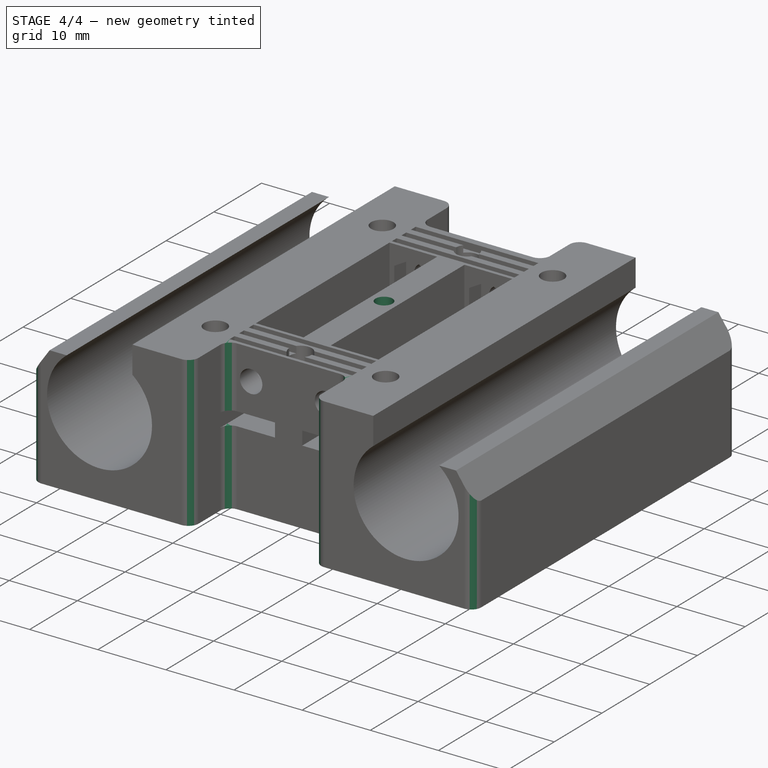
[diagram: stage 4 of 4 — iso view after this stage's code; geometry added in this stage tinted green]
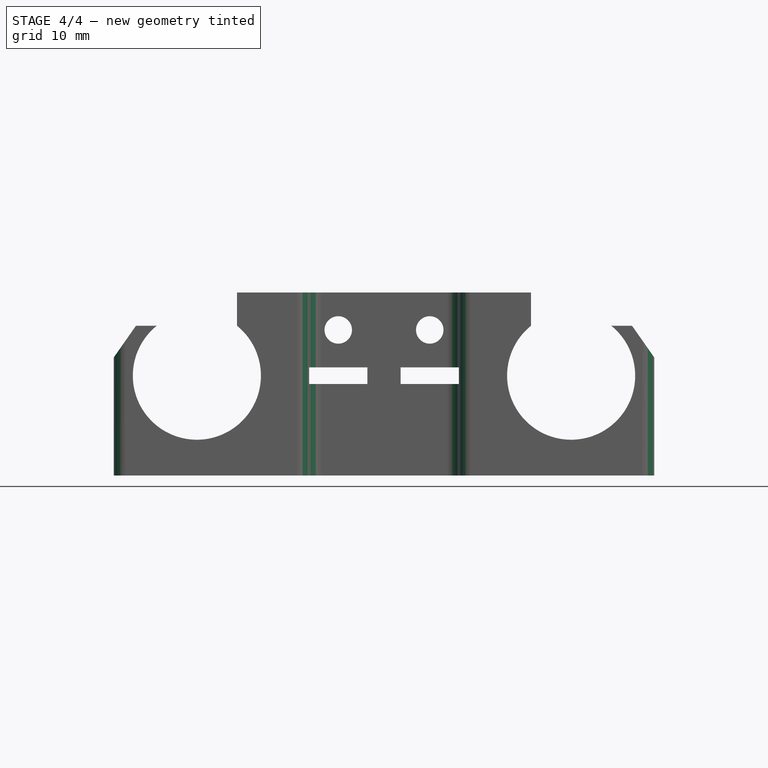
[diagram: stage 4 of 4 — front view after this stage's code; geometry added in this stage tinted green]
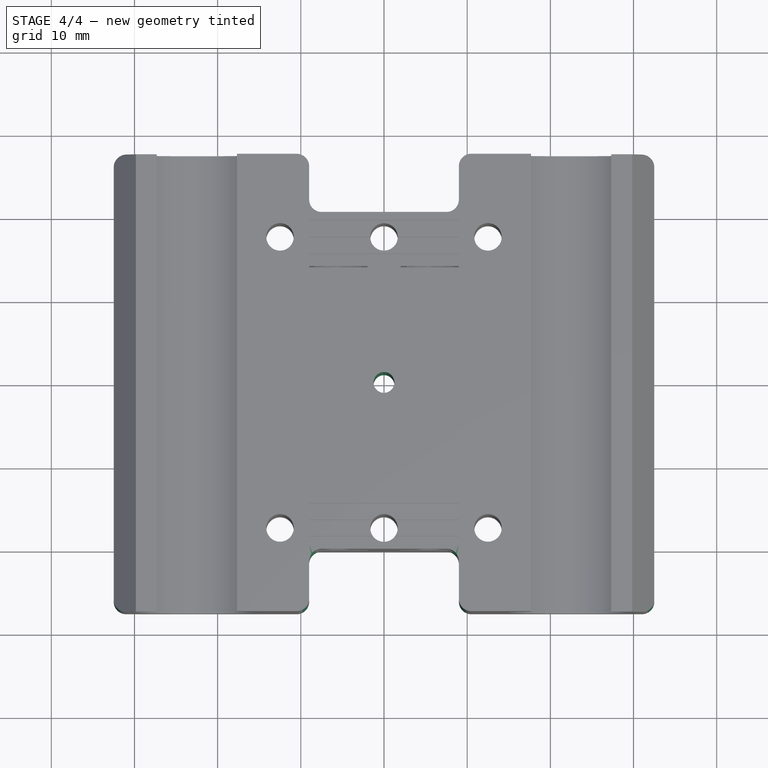
[diagram: stage 4 of 4 — top view after this stage's code; geometry added in this stage tinted green]
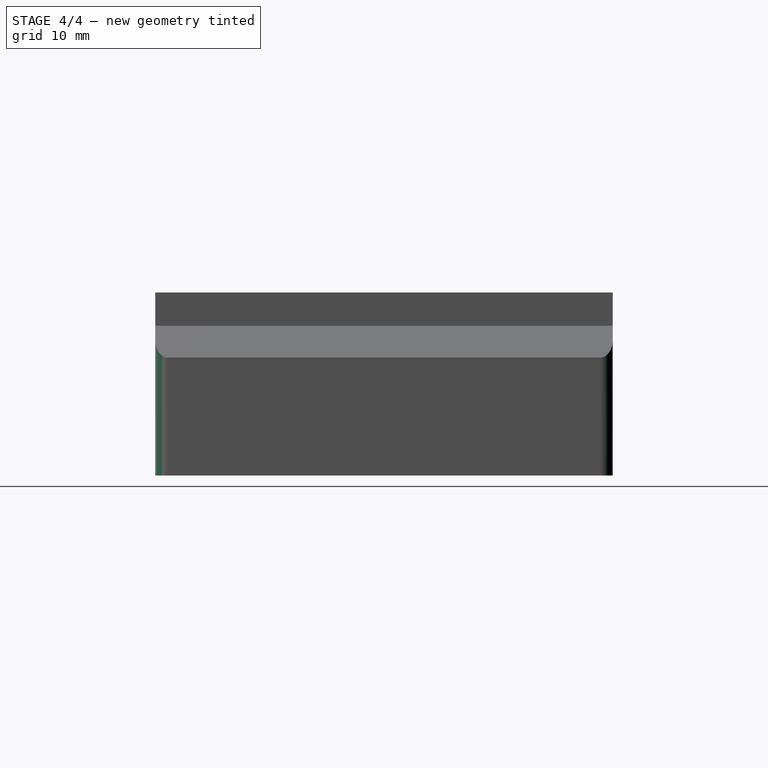
[diagram: stage 4 of 4 — right view after this stage's code; geometry added in this stage tinted green]
FEATURE [Sketcher::SketchObject] Sketch008
  MapMode = 5
  Support = -> [XY_Plane]
  sketch-geometry (1):
    g0: Circle CenterX=0 CenterY=0 CenterZ=0 NormalX=0 NormalY=0 NormalZ=1 AngleXU=0 Radius=1.25
  constraints (2):
    c: Coincident(g-1,g0)
    c: Diameter(g0) = 2.5
FEATURE [PartDesign::Pocket] Pocket007
  BaseFeature = -> Pocket006
  Length = 5
  Length2 = 100
  Midplane = true
  Placement = pos=(0,0,0) rot=(1,0,0;1.5708rad)
  Profile = -> Sketch008
  Refine = true
  Type = 1
FEATURE [PartDesign::Fillet] Fillet
  Base = -> Pocket007 [Edge46,Edge48,Edge119,Edge117,Edge18,Edge118,Edge106,Edge110,Edge124,Edge40,Edge50,Edge13,Edge133,Edge11,Edge16,Edge139]
  BaseFeature = -> Pocket007
  Placement = pos=(0,0,0) rot=(1,0,0;1.5708rad)
  Radius = 1.5
  Refine = true
  SupportTransform = true
FEATURE [PartDesign::Body] Body
  Group = -> [Sketch,Pad,Sketch001,Pocket,DatumPlane,Sketch002,Pocket001,DatumPlane001,Sketch003,Pocket002,Sketch004,Pocket003,DatumPlane002,Sketch005,Pocket004,DatumPlane003,Sketch006,Pocket005,Sketch007,Pocket006,Sketch008,Pocket007,Fillet]
  Origin = -> Origin
  Tip = -> Fillet
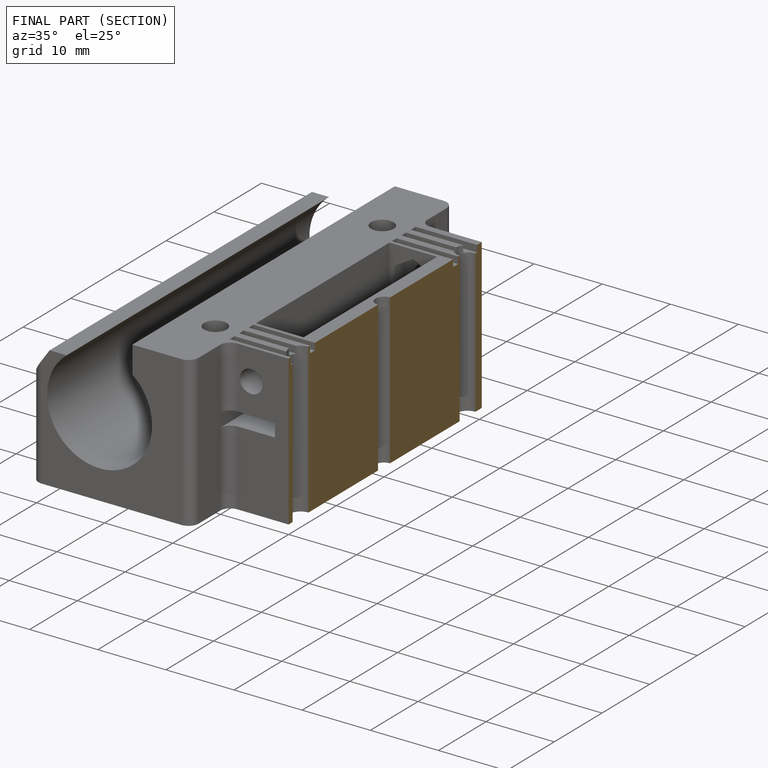
[diagram: finished part — half-section view (interior)]
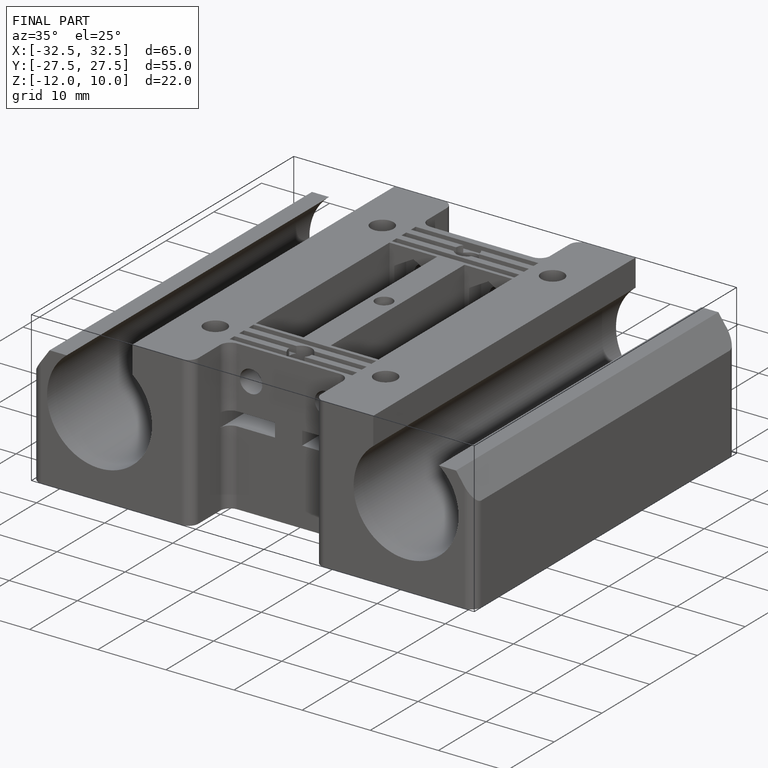
[diagram: finished part — iso view with bounding-box wireframe]
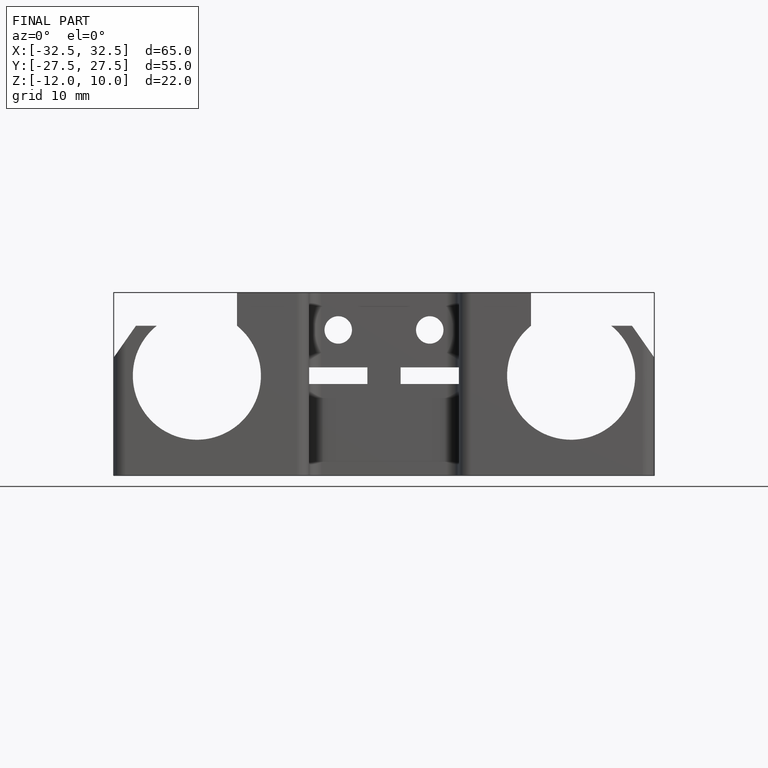
[diagram: finished part — front view with bounding-box wireframe]
